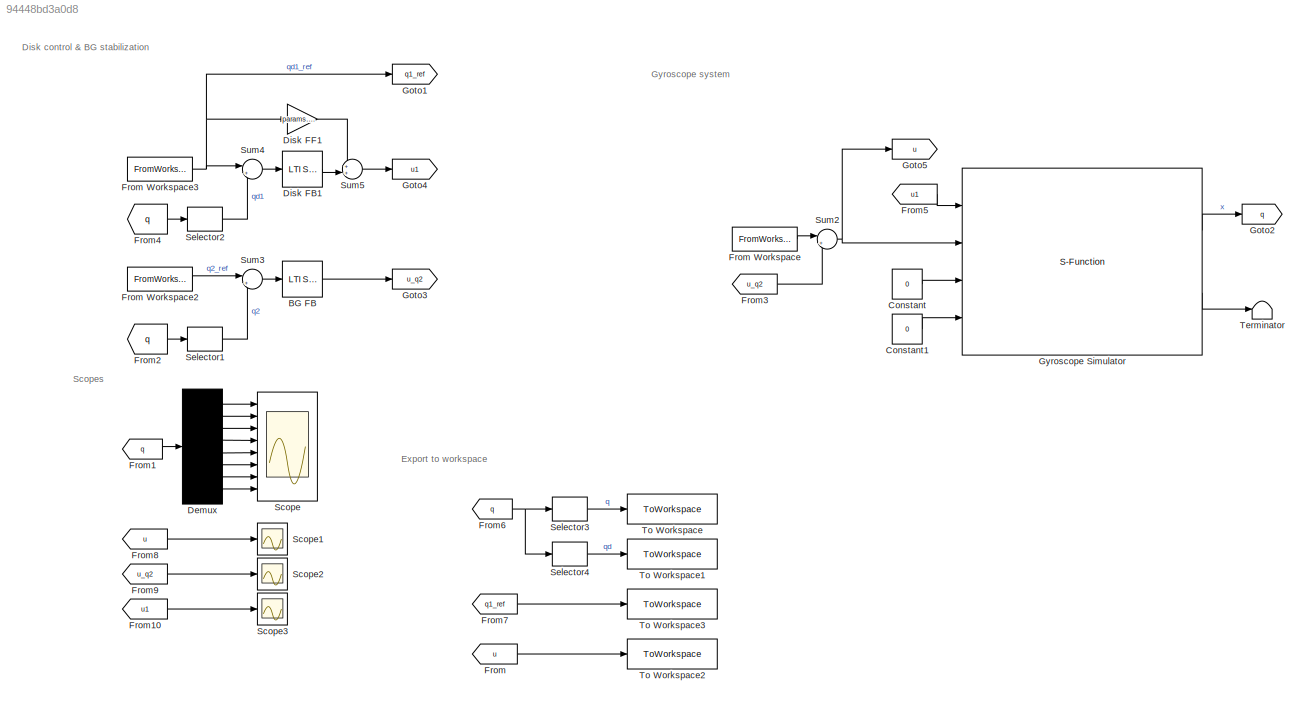
MODEL slx_94448bd3a0d8
KIND model
CONFIG AbsTol = auto
CONFIG EnableMultiTasking = off
CONFIG FixedStep = Ts
CONFIG MaxStep = auto
CONFIG MinStep = auto
CONFIG RelTol = 1e-3
CONFIG SampleTimeConstraint = Unconstrained
CONFIG SolverName = FixedStepAuto
CONFIG StartTime = 0.0
CONFIG StopTime = t(end)
BLOCK [Reference] BG FB  REF=cstblocks/LTI System
  Ports = [1, 1]
  SourceBlock = cstblocks/LTI System
  SourceProductBaseCode = CT
  SourceType = LTI Block
BLOCK [Constant] Constant
  Value = 0
BLOCK [Constant] Constant1
  Value = 0
BLOCK [Demux] Demux
  DisplayOption = none
  Outputs = 8
  Ports = [1, 8]
BLOCK [Reference] Disk FB1  REF=cstblocks/LTI System
  Ports = [1, 1]
  SourceBlock = cstblocks/LTI System
  SourceProductBaseCode = CT
  SourceType = LTI Block
BLOCK [Gain] Disk FF1
  Gain = params.fv1/params.Km1
BLOCK [From] From
  GotoTag = u
BLOCK [FromWorkspace] From Workspace
  VariableName = u
BLOCK [FromWorkspace] From Workspace2
  VariableName = q2_ref
BLOCK [FromWorkspace] From Workspace3
  VariableName = q1_ref
BLOCK [From] From1
  GotoTag = q
BLOCK [From] From10
  GotoTag = u1
BLOCK [From] From2
  GotoTag = q
BLOCK [From] From3
  GotoTag = u_q2
BLOCK [From] From4
  GotoTag = q
BLOCK [From] From5
  GotoTag = u1
BLOCK [From] From6
  GotoTag = q
BLOCK [From] From7
  GotoTag = q1_ref
BLOCK [From] From8
  GotoTag = u
BLOCK [From] From9
  GotoTag = u_q2
BLOCK [Goto] Goto1
  GotoTag = q1_ref
BLOCK [Goto] Goto2
  GotoTag = q
BLOCK [Goto] Goto3
  GotoTag = u_q2
BLOCK [Goto] Goto4
  GotoTag = u1
BLOCK [Goto] Goto5
  GotoTag = u
BLOCK [S-Function] Gyroscope Simulator
  EnableBusSupport = off
  FunctionName = gyro_simulation
  Parameters = x0,f,w1l,q2l,q3l,q4l,inertia,Km
  Ports = [4, 2]
  SFcnIsStateOwnerBlock = off
  SFunctionDeploymentMode = off
BLOCK [Scope] Scope
  Floating = off
  NumInputPorts = 8
  Ports = [8]
  ScopeSpecificationString = Simulink.scopes.TimeScopeBlockCfg('CurrentConfiguration', extmgr.ConfigurationSet(extmgr.Configuration('Core','General UI',true),extmgr.Configuration('Core','Source UI',true),extmgr.Configuration('Sources','WiredSimulink',true),extmgr.Configuration('Visuals','Time Domain',true,'SerializedDisplays',{struct('MinYLimReal','-49.37369','MaxYLimReal','444.36322','YLabelReal','','MinYLimMag','0.00000','M...<+6067ch>
BLOCK [Scope] Scope1
  Floating = off
  NumInputPorts = 1
  Ports = [1]
  ScopeSpecificationString = Simulink.scopes.TimeScopeBlockCfg('CurrentConfiguration', extmgr.ConfigurationSet(extmgr.Configuration('Core','General UI',true),extmgr.Configuration('Core','Source UI',true),extmgr.Configuration('Sources','WiredSimulink',true,'DataLoggingVariableName','ScopeData1'),extmgr.Configuration('Visuals','Time Domain',true),extmgr.Configuration('Tools','Plot Navigation',true),extmgr.Configuration('Tools',...<+40ch>
BLOCK [Scope] Scope2
  Floating = off
  NumInputPorts = 1
  Ports = [1]
  ScopeSpecificationString = Simulink.scopes.TimeScopeBlockCfg('CurrentConfiguration', extmgr.ConfigurationSet(extmgr.Configuration('Core','General UI',true),extmgr.Configuration('Core','Source UI',true),extmgr.Configuration('Sources','WiredSimulink',true,'DataLoggingVariableName','ScopeData2'),extmgr.Configuration('Visuals','Time Domain',true),extmgr.Configuration('Tools','Plot Navigation',true),extmgr.Configuration('Tools',...<+40ch>
BLOCK [Scope] Scope3
  Floating = off
  NumInputPorts = 1
  Ports = [1]
  ScopeSpecificationString = Simulink.scopes.TimeScopeBlockCfg('CurrentConfiguration', extmgr.ConfigurationSet(extmgr.Configuration('Core','General UI',true),extmgr.Configuration('Core','Source UI',true),extmgr.Configuration('Sources','WiredSimulink',true,'DataLoggingVariableName','ScopeData3'),extmgr.Configuration('Visuals','Time Domain',true),extmgr.Configuration('Tools','Plot Navigation',true),extmgr.Configuration('Tools',...<+40ch>
BLOCK [Selector] Selector1
  IndexOptions = Index vector (dialog)
  Indices = 2
  InputPortWidth = 8
  OutputSizes = 1
  Ports = [1, 1]
BLOCK [Selector] Selector2
  IndexOptions = Index vector (dialog)
  Indices = 5
  InputPortWidth = 8
  OutputSizes = 1
  Ports = [1, 1]
BLOCK [Selector] Selector3
  IndexOptions = Index vector (dialog)
  Indices = [1:4]
  InputPortWidth = 8
  OutputSizes = 1
  Ports = [1, 1]
BLOCK [Selector] Selector4
  IndexOptions = Index vector (dialog)
  Indices = [5:8]
  InputPortWidth = 8
  OutputSizes = 1
  Ports = [1, 1]
BLOCK [Sum] Sum2
  Inputs = |++
  Ports = [2, 1]
BLOCK [Sum] Sum3
  Inputs = |+-
  Ports = [2, 1]
BLOCK [Sum] Sum4
  Inputs = |+-
  Ports = [2, 1]
BLOCK [Sum] Sum5
  Inputs = ++|
  Ports = [2, 1]
BLOCK [Terminator] Terminator
BLOCK [ToWorkspace] To Workspace
  FixptAsFi = on
  MaxDataPoints = inf
  Ports = [1]
  SampleTime = -1
  SaveFormat = Timeseries
  VariableName = q
BLOCK [ToWorkspace] To Workspace1
  FixptAsFi = on
  MaxDataPoints = inf
  Ports = [1]
  SampleTime = -1
  SaveFormat = Timeseries
  VariableName = qd
BLOCK [ToWorkspace] To Workspace2
  FixptAsFi = on
  MaxDataPoints = inf
  Ports = [1]
  SampleTime = -1
  SaveFormat = Timeseries
  VariableName = u
BLOCK [ToWorkspace] To Workspace3
  FixptAsFi = on
  MaxDataPoints = inf
  Ports = [1]
  SampleTime = -1
  SaveFormat = Timeseries
  VariableName = q1_ref
ANNOTATION (root): Disk control & BG stabilization
ANNOTATION (root): Export to workspace
ANNOTATION (root): Gyroscope system
ANNOTATION (root): Scopes
LINE BG FB:1 -> Goto3:1
LINE Constant1:1 -> Gyroscope Simulator:4
LINE Constant:1 -> Gyroscope Simulator:3
LINE Demux:1 -> Scope:1
LINE Demux:2 -> Scope:2
LINE Demux:3 -> Scope:3
LINE Demux:4 -> Scope:4
LINE Demux:5 -> Scope:5
LINE Demux:6 -> Scope:6
LINE Demux:7 -> Scope:7
LINE Demux:8 -> Scope:8
LINE Disk FB1:1 -> Sum5:2
LINE Disk FF1:1 -> Sum5:1
LINE From Workspace2:1 -> Sum3:1
NET From Workspace3:1 -> Disk FF1:1, Goto1:1, Sum4:1
LINE From Workspace:1 -> Sum2:1
LINE From10:1 -> Scope3:1
LINE From1:1 -> Demux:1
LINE From2:1 -> Selector1:1
LINE From3:1 -> Sum2:2
LINE From4:1 -> Selector2:1
LINE From5:1 -> Gyroscope Simulator:1
NET From6:1 -> Selector3:1, Selector4:1
LINE From7:1 -> To Workspace3:1
LINE From8:1 -> Scope1:1
LINE From9:1 -> Scope2:1
LINE From:1 -> To Workspace2:1
LINE Gyroscope Simulator:1 -> Goto2:1
LINE Gyroscope Simulator:2 -> Terminator:1
LINE Selector1:1 -> Sum3:2
LINE Selector2:1 -> Sum4:2
LINE Selector3:1 -> To Workspace:1
LINE Selector4:1 -> To Workspace1:1
NET Sum2:1 -> Goto5:1, Gyroscope Simulator:2
LINE Sum3:1 -> BG FB:1
LINE Sum4:1 -> Disk FB1:1
LINE Sum5:1 -> Goto4:1
note: NET lines group one-source signal fan-out (src -> all destinations, sorted); 1:1 wires keep LINE
